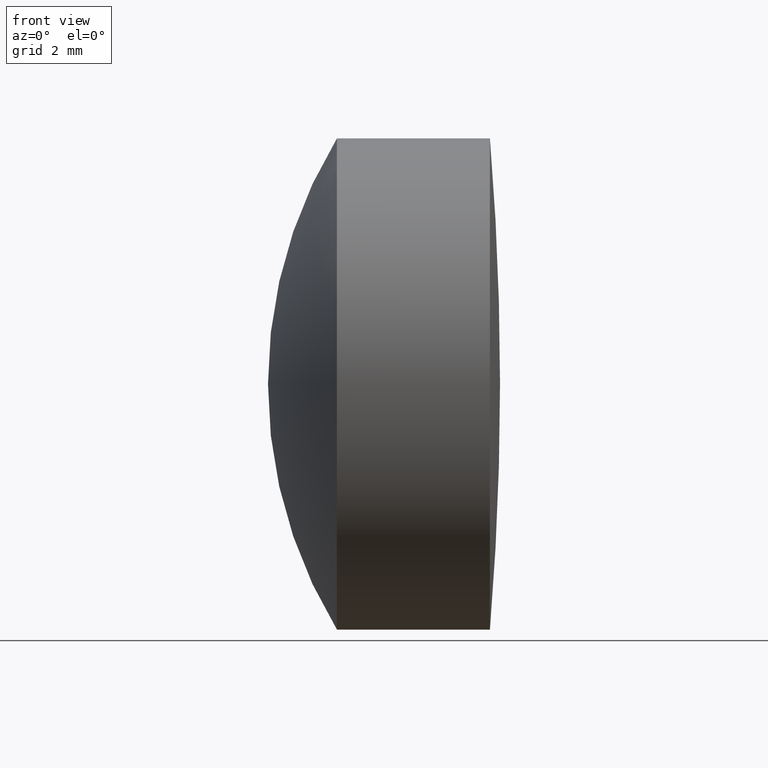
[diagram: clean part render]
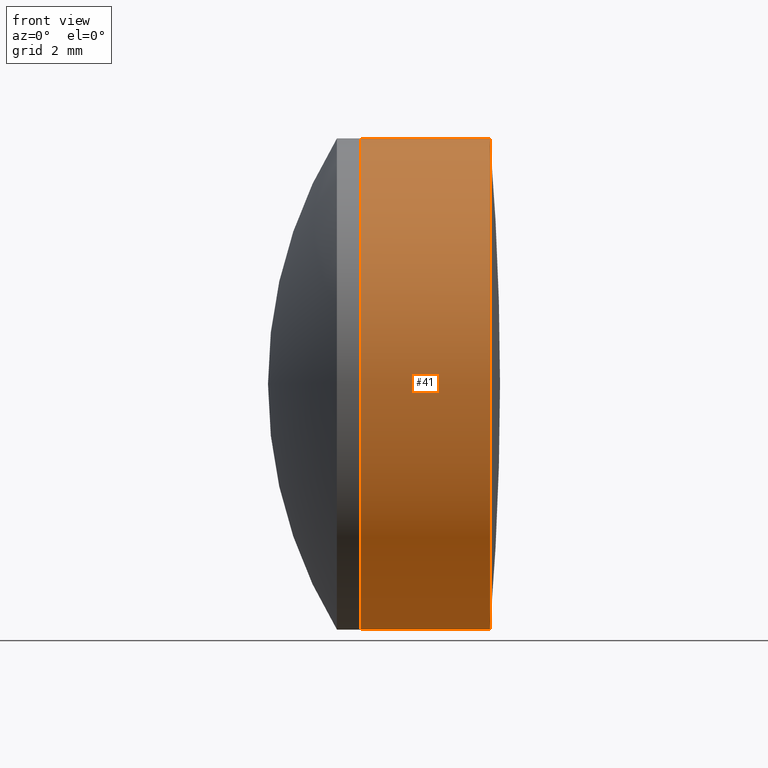
[diagram: same view with one face highlighted and labeled with its STEP entity id]
A machine part, front view. The second image highlights one B-rep face of the part: STEP entity #41.
In plain terms, the highlighted cylindrical surface (partial cylindrical patch) has radius 6.35 mm, axis along (-1, -0, -0).
Its self-contained STEP definition (entity closure, byte-faithful):
#2 = CARTESIAN_POINT ( 'NONE',  ( 272.5480355923398900, 0.0000000000000000000, 0.0000000000000000000 ) ) ;
#4 = DIRECTION ( 'NONE',  ( 0.0000000000000000000, 0.0000000000000000000, 1.000000000000000000 ) ) ;
#6 = CIRCLE ( 'NONE', #218, 6.349999999999997000 ) ;
#14 = VECTOR ( 'NONE', #337, 1000.000000000000000 ) ;
#26 = CARTESIAN_POINT ( 'NONE',  ( 269.1964474457524300, 0.0000000000000000000, 6.349999999999997000 ) ) ;
#33 = VERTEX_POINT ( 'NONE', #49 ) ;
#41 = ADVANCED_FACE ( 'NONE', ( #281 ), #320, .T. ) ;
#44 = VECTOR ( 'NONE', #80, 1000.000000000000000 ) ;
#49 = CARTESIAN_POINT ( 'NONE',  ( 272.5480355923398900, 7.776507174585696100E-016, -6.350000000000002300 ) ) ;
#51 = DIRECTION ( 'NONE',  ( -1.000000000000000000, -0.0000000000000000000, -0.0000000000000000000 ) ) ;
#55 = ORIENTED_EDGE ( 'NONE', *, *, #146, .T. ) ;
#80 = DIRECTION ( 'NONE',  ( -1.000000000000000000, -0.0000000000000000000, -0.0000000000000000000 ) ) ;
#85 = AXIS2_PLACEMENT_3D ( 'NONE', #2, #231, #111 ) ;
#87 = VERTEX_POINT ( 'NONE', #161 ) ;
#89 = CARTESIAN_POINT ( 'NONE',  ( 269.1964474457524300, 7.776507174585689200E-016, -6.350000000000000500 ) ) ;
#100 = EDGE_CURVE ( 'NONE', #33, #87, #293, .T. ) ;
#108 = CARTESIAN_POINT ( 'NONE',  ( 269.1964474457524300, 0.0000000000000000000, 0.0000000000000000000 ) ) ;
#111 = DIRECTION ( 'NONE',  ( 0.0000000000000000000, 0.0000000000000000000, 1.000000000000000000 ) ) ;
#133 = ORIENTED_EDGE ( 'NONE', *, *, #100, .T. ) ;
#134 = VERTEX_POINT ( 'NONE', #26 ) ;
#142 = CARTESIAN_POINT ( 'NONE',  ( -0.5519199926577972300, 0.0000000000000000000, 0.0000000000000000000 ) ) ;
#146 = EDGE_CURVE ( 'NONE', #87, #134, #314, .T. ) ;
#151 = CARTESIAN_POINT ( 'NONE',  ( -0.5519199926577972300, 7.776507174585692200E-016, -6.349999999999999600 ) ) ;
#161 = CARTESIAN_POINT ( 'NONE',  ( 272.5480355923398900, 0.0000000000000000000, 6.350000000000002300 ) ) ;
#163 = VERTEX_POINT ( 'NONE', #89 ) ;
#193 = DIRECTION ( 'NONE',  ( -1.000000000000000000, -0.0000000000000000000, -0.0000000000000000000 ) ) ;
#210 = EDGE_CURVE ( 'NONE', #163, #134, #6, .T. ) ;
#218 = AXIS2_PLACEMENT_3D ( 'NONE', #108, #193, #306 ) ;
#224 = EDGE_CURVE ( 'NONE', #33, #163, #264, .T. ) ;
#231 = DIRECTION ( 'NONE',  ( -1.000000000000000000, -0.0000000000000000000, -0.0000000000000000000 ) ) ;
#252 = ORIENTED_EDGE ( 'NONE', *, *, #210, .F. ) ;
#264 = LINE ( 'NONE', #151, #14 ) ;
#277 = EDGE_LOOP ( 'NONE', ( #326, #133, #55, #252 ) ) ;
#281 = FACE_OUTER_BOUND ( 'NONE', #277, .T. ) ;
#293 = CIRCLE ( 'NONE', #85, 6.350000000000002300 ) ;
#306 = DIRECTION ( 'NONE',  ( 0.0000000000000000000, 0.0000000000000000000, 1.000000000000000000 ) ) ;
#314 = LINE ( 'NONE', #315, #44 ) ;
#315 = CARTESIAN_POINT ( 'NONE',  ( -0.5519199926577972300, 0.0000000000000000000, 6.349999999999999600 ) ) ;
#320 = CYLINDRICAL_SURFACE ( 'NONE', #331, 6.349999999999999600 ) ;
#326 = ORIENTED_EDGE ( 'NONE', *, *, #224, .F. ) ;
#331 = AXIS2_PLACEMENT_3D ( 'NONE', #142, #51, #4 ) ;
#337 = DIRECTION ( 'NONE',  ( -1.000000000000000000, -0.0000000000000000000, -0.0000000000000000000 ) ) ;